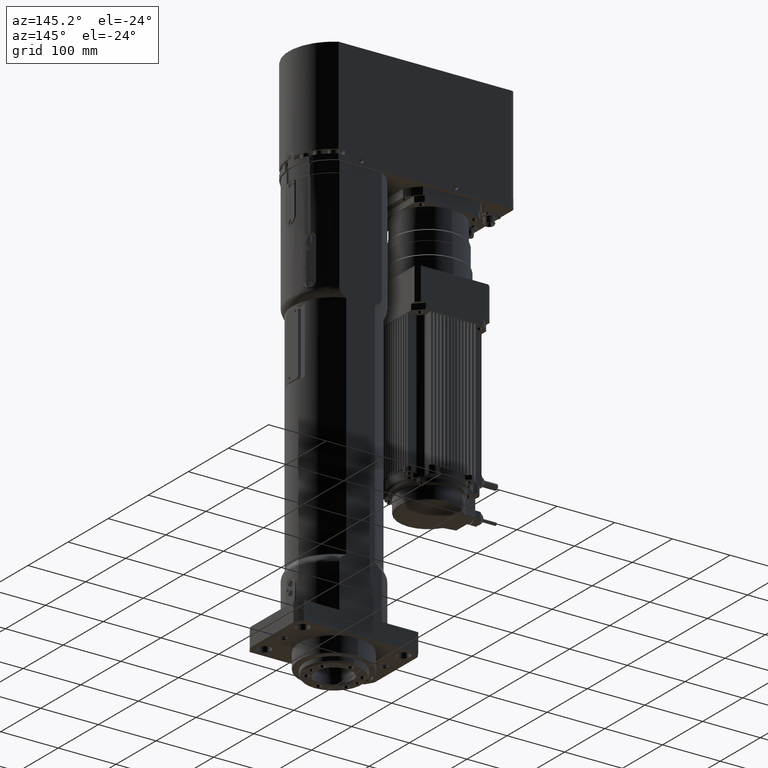
[diagram: clean part render]
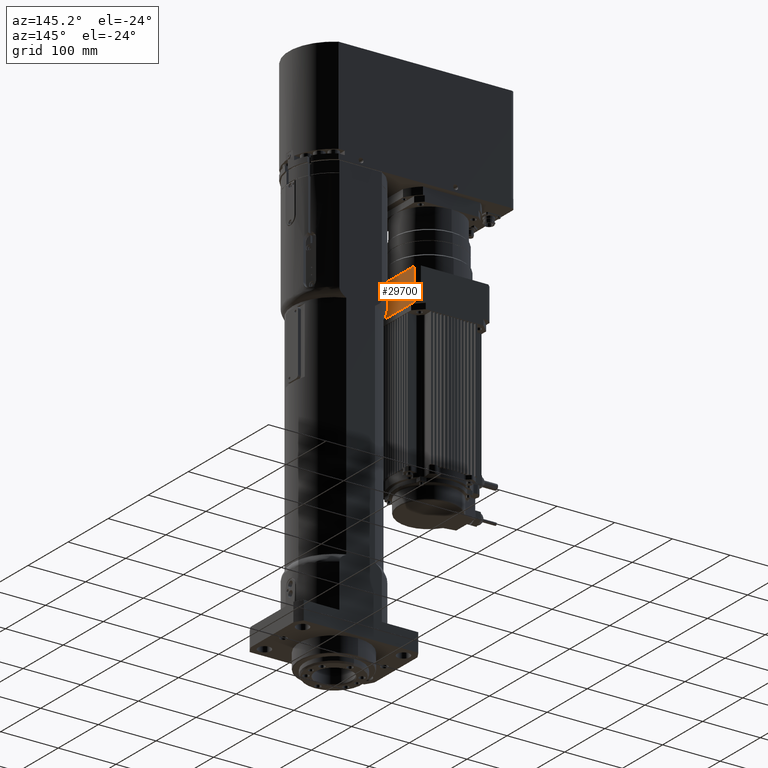
[diagram: same view with one face highlighted and labeled with its STEP entity id]
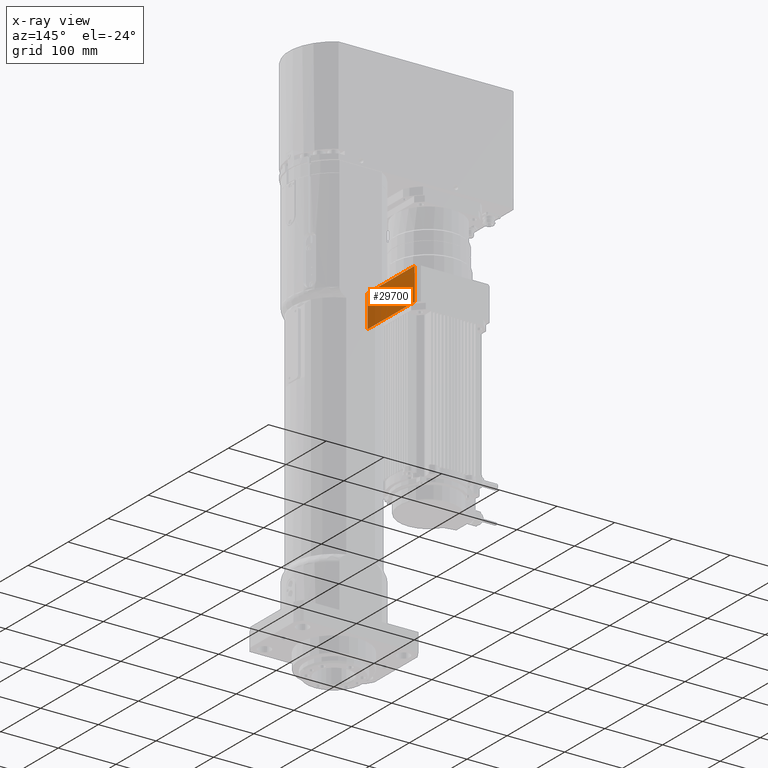
[diagram: x-ray of the same camera — body ghosted, the highlighted face saturated]
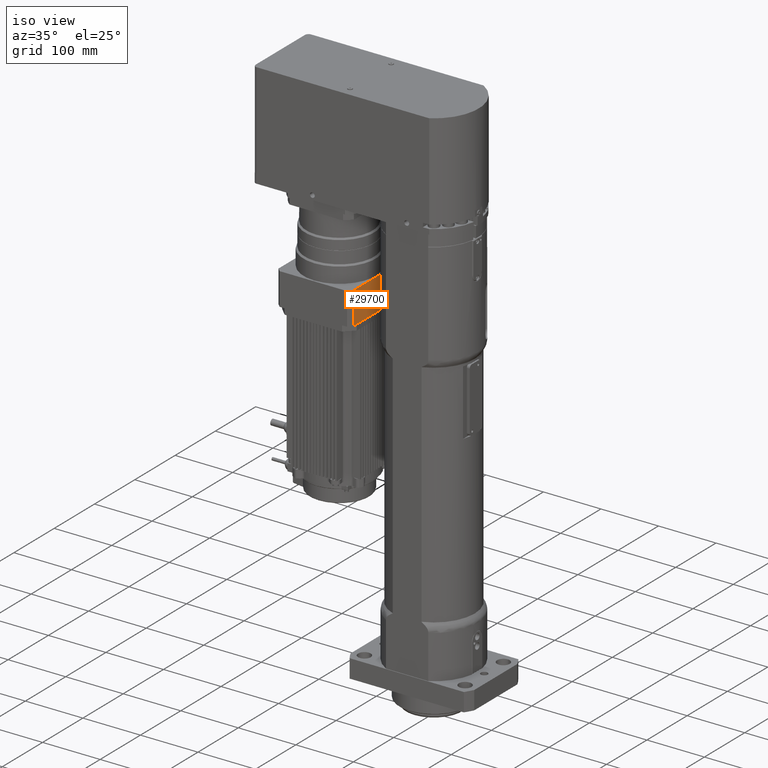
[diagram: same view with one face highlighted and labeled with its STEP entity id]
A machine part, auxiliary view. The second image highlights one B-rep face of the part: STEP entity #29700.
The next image is the same camera in x-ray: the body ghosted, the highlighted face saturated — about 32% of this face is hidden behind the body in this view.
A second angle (iso view) of the same face is appended — the face is thin or edge-on in the first view.
In plain terms, the highlighted planar face has unit normal (1, 0, -0).
Its self-contained STEP definition (entity closure, byte-faithful):
#505=PLANE('',#31536);
#2246=FACE_OUTER_BOUND('',#3948,.T.);
#3948=EDGE_LOOP('',(#19204,#19205,#19206,#19207,#19208,#19209));
#5879=LINE('',#42054,#8459);
#5883=LINE('',#42066,#8463);
#5887=LINE('',#42078,#8467);
#5888=LINE('',#42079,#8468);
#5889=LINE('',#42081,#8469);
#5890=LINE('',#42082,#8470);
#8459=VECTOR('',#34147,10.);
#8463=VECTOR('',#34157,10.);
#8467=VECTOR('',#34167,10.);
#8468=VECTOR('',#34168,10.);
#8469=VECTOR('',#34169,10.);
#8470=VECTOR('',#34170,10.);
#12097=VERTEX_POINT('',#42050);
#12099=VERTEX_POINT('',#42053);
#12102=VERTEX_POINT('',#42060);
#12104=VERTEX_POINT('',#42064);
#12109=VERTEX_POINT('',#42077);
#12110=VERTEX_POINT('',#42080);
#14900=EDGE_CURVE('',#12099,#12097,#5879,.T.);
#14906=EDGE_CURVE('',#12102,#12104,#5883,.T.);
#14911=EDGE_CURVE('',#12109,#12099,#5887,.T.);
#14912=EDGE_CURVE('',#12102,#12097,#5888,.T.);
#14913=EDGE_CURVE('',#12104,#12110,#5889,.T.);
#14914=EDGE_CURVE('',#12110,#12109,#5890,.T.);
#19204=ORIENTED_EDGE('',*,*,#14911,.T.);
#19205=ORIENTED_EDGE('',*,*,#14900,.T.);
#19206=ORIENTED_EDGE('',*,*,#14912,.F.);
#19207=ORIENTED_EDGE('',*,*,#14906,.T.);
#19208=ORIENTED_EDGE('',*,*,#14913,.T.);
#19209=ORIENTED_EDGE('',*,*,#14914,.T.);
#29700=ADVANCED_FACE('',(#2246),#505,.T.);
#31536=AXIS2_PLACEMENT_3D('',#42076,#34165,#34166);
#34147=DIRECTION('',(1.,4.61646779138228E-15,-3.7714370506134E-15));
#34157=DIRECTION('',(1.,4.61646779138228E-15,-3.7714370506134E-15));
#34165=DIRECTION('center_axis',(4.61646779138228E-15,-1.,-2.25081679857747E-16));
#34166=DIRECTION('ref_axis',(-4.42713297738776E-15,-2.25081679857768E-16,
1.));
#34167=DIRECTION('',(-3.76076182922268E-15,2.2508167985773E-16,-1.));
#34168=DIRECTION('',(-1.,-4.69265786845339E-15,3.79919281282746E-15));
#34169=DIRECTION('',(3.76076182922268E-15,-2.2508167985773E-16,1.));
#34170=DIRECTION('',(-1.,-4.61646779138228E-15,3.7714370506134E-15));
#42050=CARTESIAN_POINT('',(-49.9999999999999,99.0000000000006,549.999999999999));
#42053=CARTESIAN_POINT('',(-58.5768725692998,99.0000000000005,549.999999999999));
#42054=CARTESIAN_POINT('',(65.0000000000001,99.0000000000011,549.999999999999));
#42060=CARTESIAN_POINT('',(50.0000000000001,99.0000000000011,549.999999999999));
#42064=CARTESIAN_POINT('',(58.5768725693,99.0000000000011,549.999999999999));
#42066=CARTESIAN_POINT('',(65.0000000000001,99.0000000000011,549.999999999999));
#42076=CARTESIAN_POINT('Origin',(2.08115484856106E-13,99.0000000000008,
577.999999999999));
#42077=CARTESIAN_POINT('',(-58.5768725692996,99.0000000000005,605.999999999999));
#42078=CARTESIAN_POINT('',(-58.5768725692989,99.0000000000005,549.999999999999));
#42079=CARTESIAN_POINT('',(65.0000000000001,99.0000000000011,549.999999999999));
#42080=CARTESIAN_POINT('',(58.5768725693002,99.0000000000011,605.999999999999));
#42081=CARTESIAN_POINT('',(58.5768725693008,99.0000000000011,549.999999999999));
#42082=CARTESIAN_POINT('',(-64.9999999999997,99.0000000000005,605.999999999999));